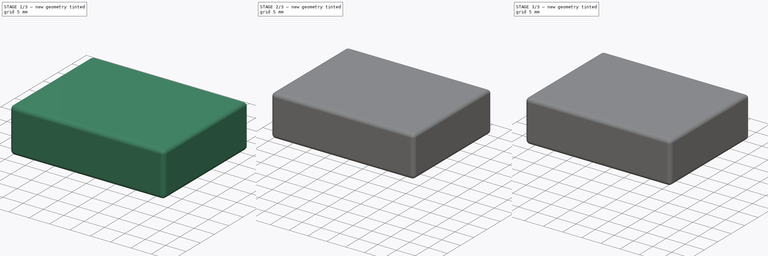
[diagram: build sequence overview — one tinted view per stage of 3, left to right]
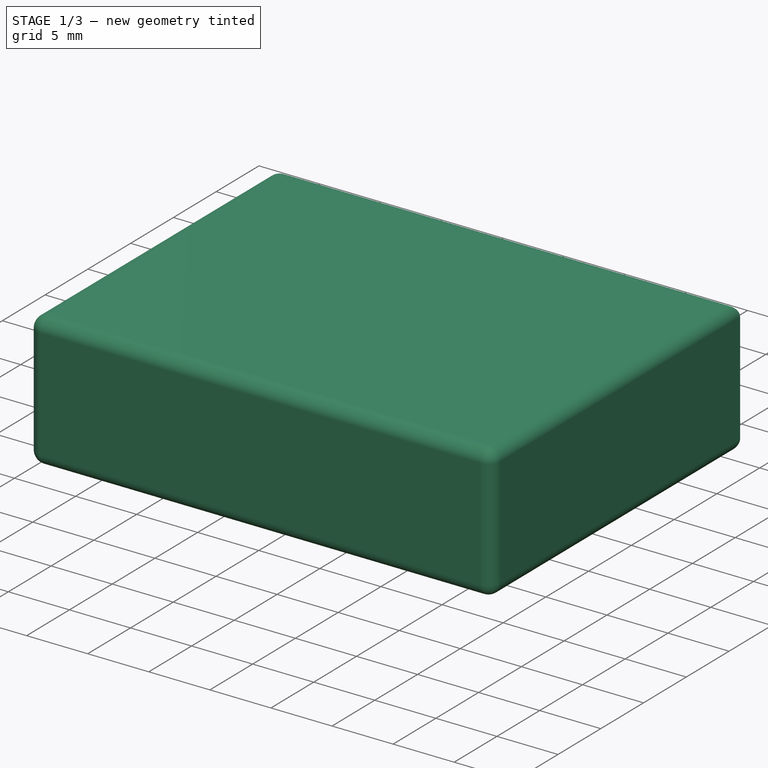
[diagram: stage 1 of 3 — iso view after this stage's code; geometry added in this stage tinted green]
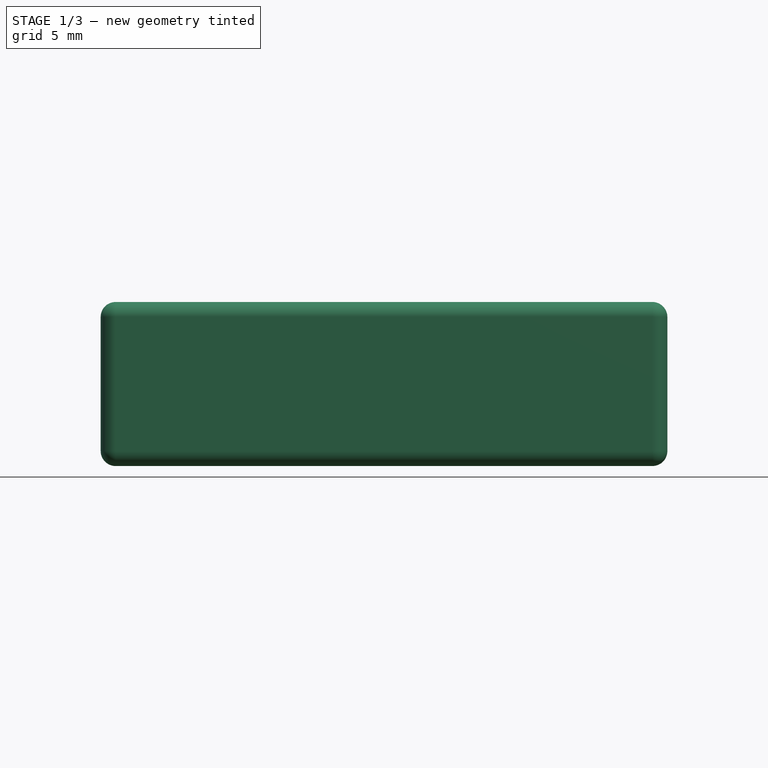
[diagram: stage 1 of 3 — front view after this stage's code; geometry added in this stage tinted green]
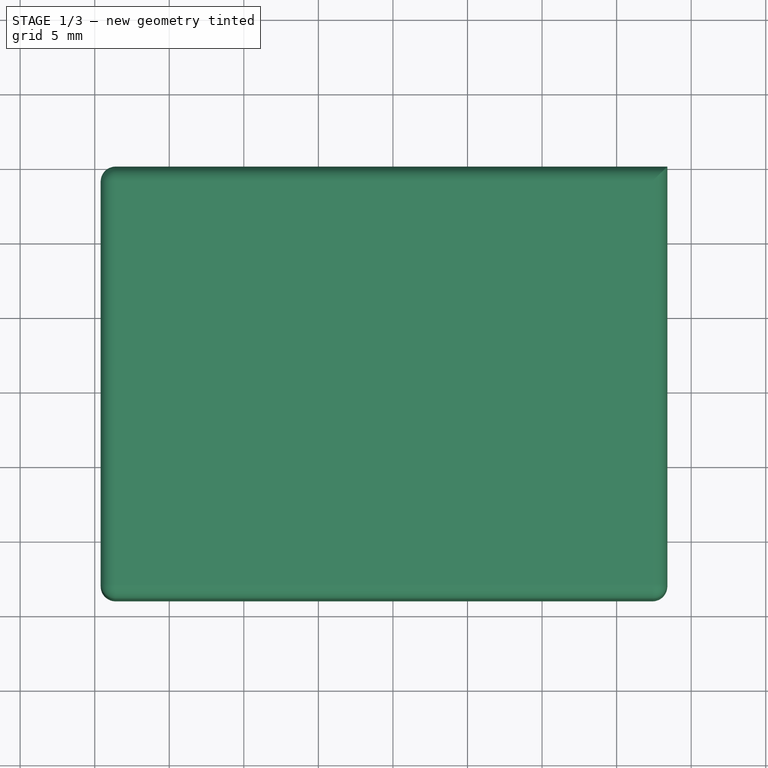
[diagram: stage 1 of 3 — top view after this stage's code; geometry added in this stage tinted green]
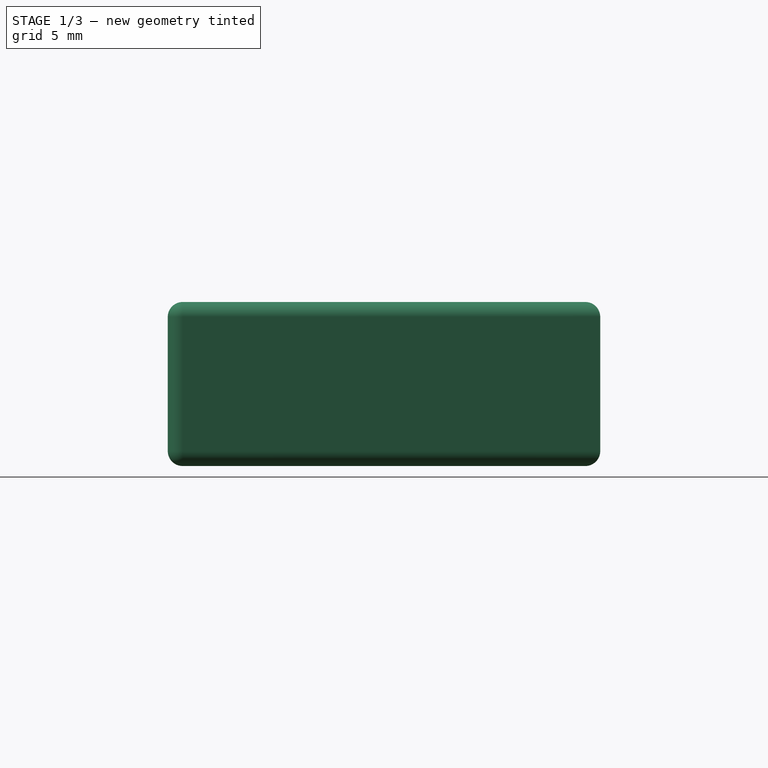
[diagram: stage 1 of 3 — right view after this stage's code; geometry added in this stage tinted green]
FCSTD DOCUMENT  (FreeCAD 0.18R16110 (Git))
Label: Belton BTDR-2H
License: All rights reserved
LicenseURL: http://en.wikipedia.org/wiki/All_rights_reserved
objects: Sketcher::SketchObject×2, PartDesign::AdditivePipe×1, PartDesign::Body×1, Part::FeaturePython×1, Part::MultiFuse×1, Part::Box×1, Part::Fillet×1
note: 9 computed .brp shape members not serialized (recipe doc carries the construction recipe); baked Part::Feature solids carry a one-line shape summary decoded from their .brp

FEATURE [Part::Box] Box  label="Cube"
  AttacherType = Attacher::AttachEngine3D
  Height = 11
  Length = 38
  Placement = pos=(13.4,0,0) rot=(0,0,1;3.14159rad)
  Width = 29
FEATURE [Part::Fillet] Fillet
  Base = -> Box
  Edges = 11 edges r=1: [Edge2,Edge3,Edge4,Edge5,Edge6,Edge7,Edge8,Edge9,Edge10,Edge11,Edge12]
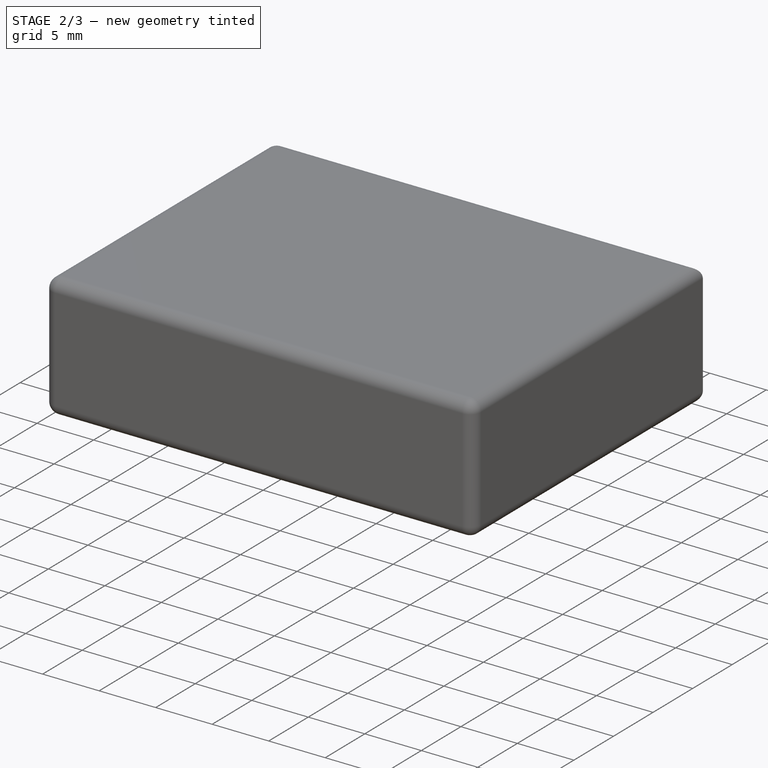
[diagram: stage 2 of 3 — iso view after this stage's code; geometry added in this stage tinted green]
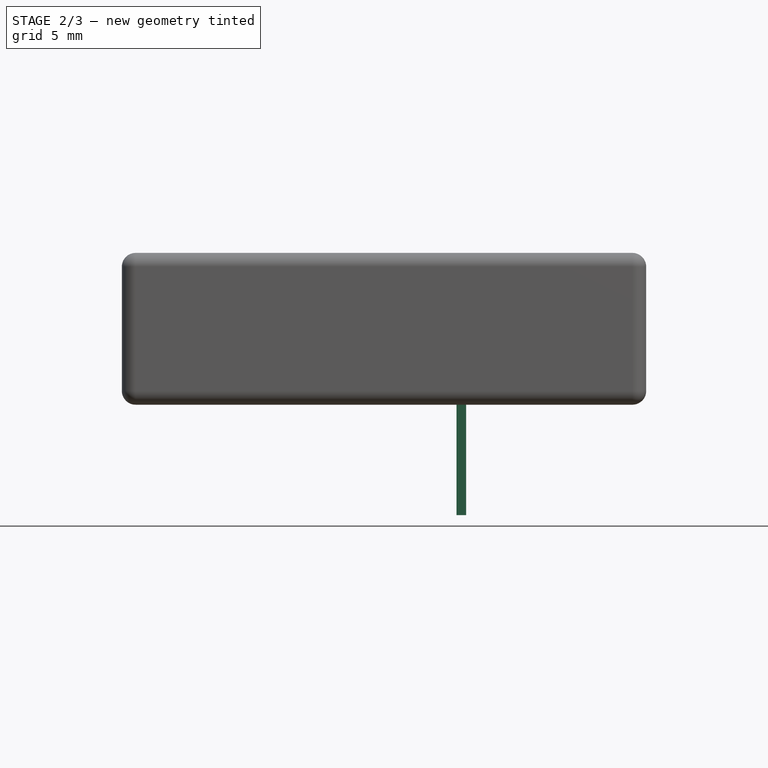
[diagram: stage 2 of 3 — front view after this stage's code; geometry added in this stage tinted green]
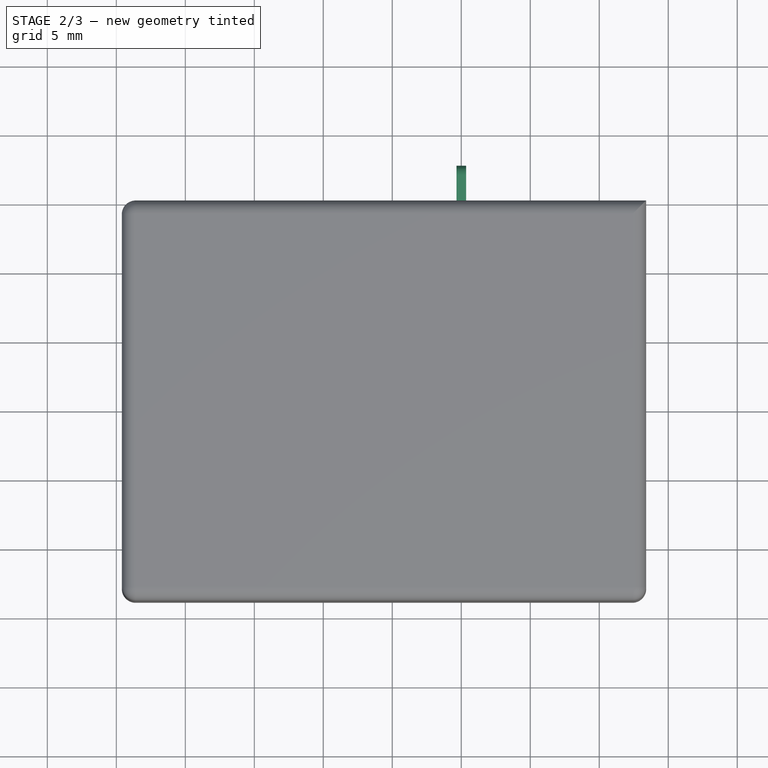
[diagram: stage 2 of 3 — top view after this stage's code; geometry added in this stage tinted green]
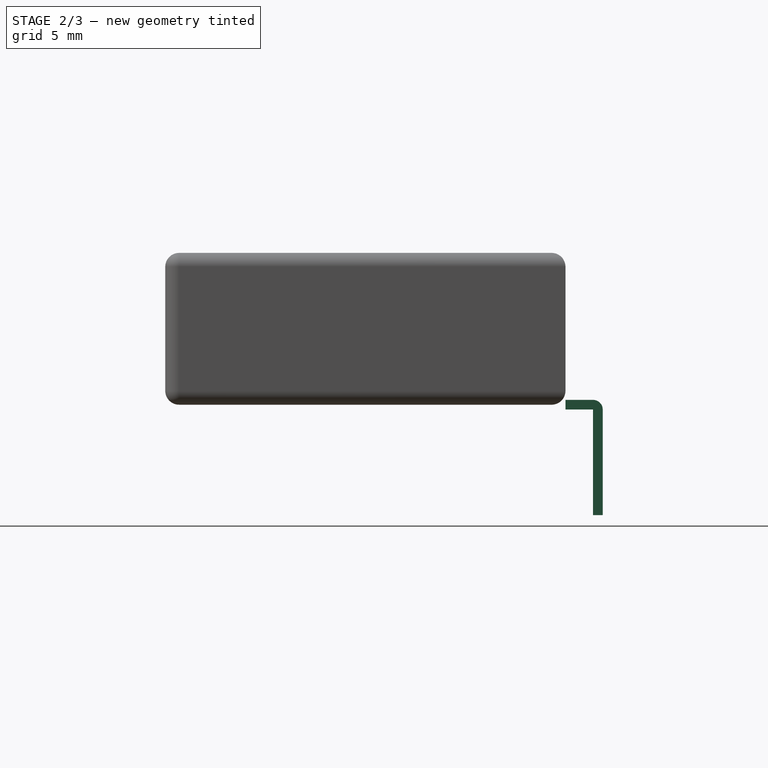
[diagram: stage 2 of 3 — right view after this stage's code; geometry added in this stage tinted green]
FEATURE [Sketcher::SketchObject] Sketch
  MapMode = 5
  Placement = pos=(0,0,0) rot=(0.57735,0.57735,0.57735;2.0944rad)
  Support = -> [YZ_Plane]
  sketch-geometry (3):
    g0: LineSegment StartX=0 StartY=0 StartZ=0 EndX=2 EndY=0 EndZ=0
    g1: ArcOfCircle CenterX=2 CenterY=-0.35 CenterZ=0 NormalX=0 NormalY=0 NormalZ=1 AngleXU=0 Radius=0.35 StartAngle=-1.084e-13 EndAngle=1.5708
    g2: LineSegment StartX=2.35 StartY=-0.35 StartZ=0 EndX=2.35 EndY=-8 EndZ=0
  constraints (8):
    c: Horizontal(g0)
    c: Coincident(g0,g-1)
    c: Tangent(g0,g1) = 1.5708
    c: Vertical(g2)
    c: Tangent(g2,g1) = 1.5708
    c: DistanceY(g2,g0) = 8
    c: DistanceX(g0,g0) = 2
    c: DistanceX(g0,g2) = 2.35
FEATURE [Sketcher::SketchObject] Sketch001
  MapMode = 5
  Placement = pos=(0,0,0) rot=(1,0,0;1.5708rad)
  Support = -> [XZ_Plane]
  sketch-geometry (4):
    g0: LineSegment StartX=-0.35 StartY=0.35 StartZ=0 EndX=0.35 EndY=0.35 EndZ=0
    g1: LineSegment StartX=0.35 StartY=0.35 StartZ=0 EndX=0.35 EndY=-0.35 EndZ=0
    g2: LineSegment StartX=0.35 StartY=-0.35 StartZ=0 EndX=-0.35 EndY=-0.35 EndZ=0
    g3: LineSegment StartX=-0.35 StartY=-0.35 StartZ=0 EndX=-0.35 EndY=0.35 EndZ=0
  constraints (11):
    c: Coincident(g0,g1)
    c: Coincident(g1,g2)
    c: Coincident(g2,g3)
    c: Coincident(g3,g0)
    c: Horizontal(g0)
    c: Horizontal(g2)
    c: Vertical(g1)
    c: Vertical(g3)
    c: Equal(g0,g3)
    c: DistanceX(g0,g0) = 0.7
    c: Symmetric(g0,g2,g-1)
FEATURE [PartDesign::AdditivePipe] AdditivePipe
  AuxilleryCurvelinear = true
  AuxillerySpineTangent = false
  Binormal = (0,0,0)
  Mode = 2
  Placement = pos=(0,0,0) rot=(1,0,0;1.5708rad)
  Profile = -> Sketch001
  Spine = -> Sketch
  SpineTangent = false
  Transformation = 0
  Transition = 0
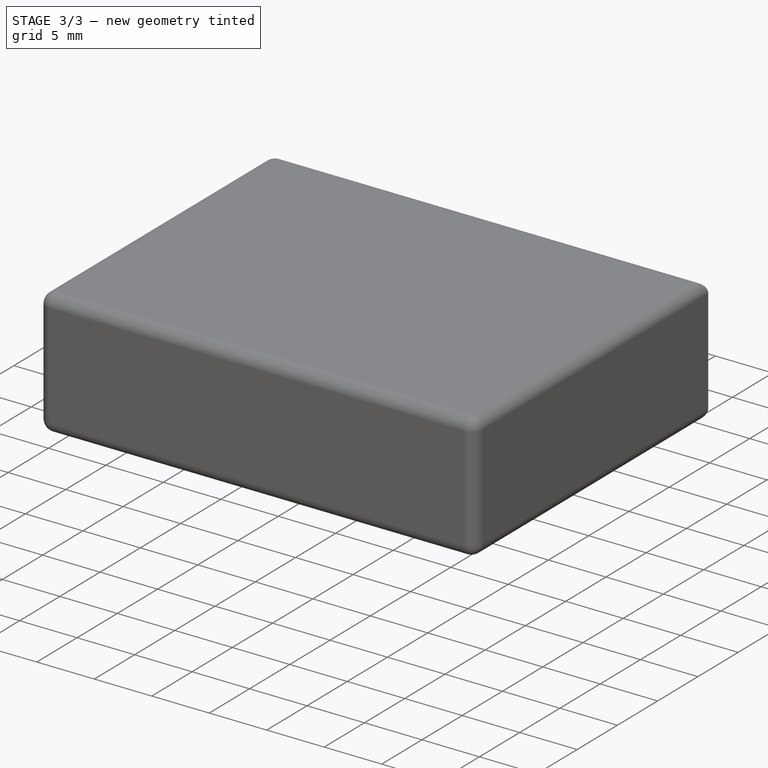
[diagram: stage 3 of 3 — iso view after this stage's code; geometry added in this stage tinted green]
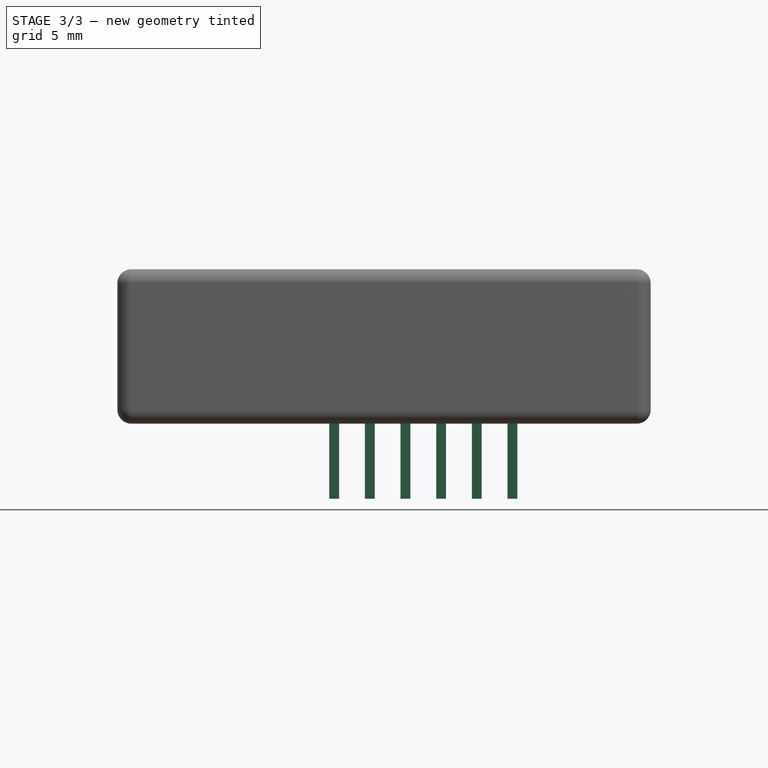
[diagram: stage 3 of 3 — front view after this stage's code; geometry added in this stage tinted green]
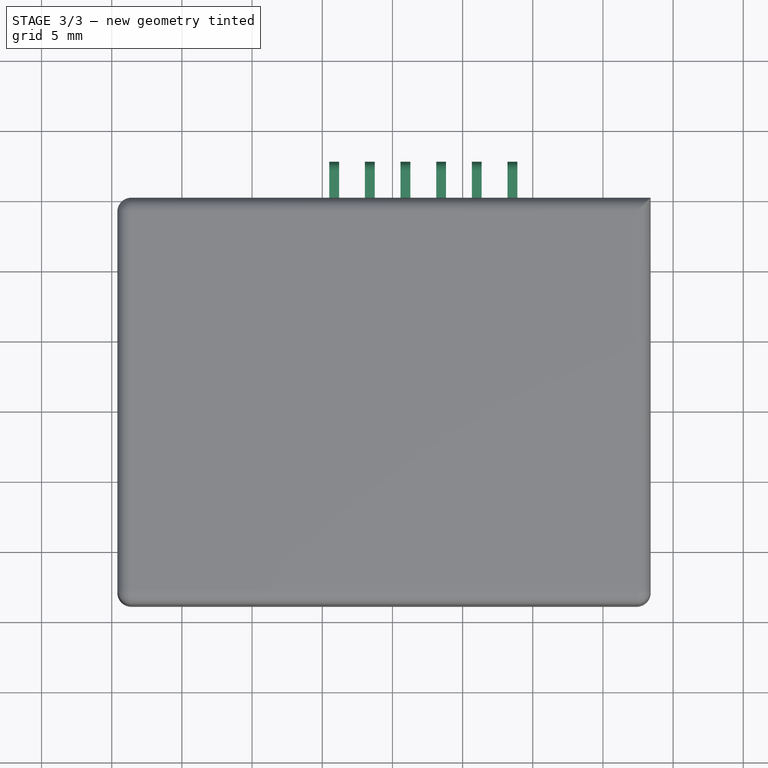
[diagram: stage 3 of 3 — top view after this stage's code; geometry added in this stage tinted green]
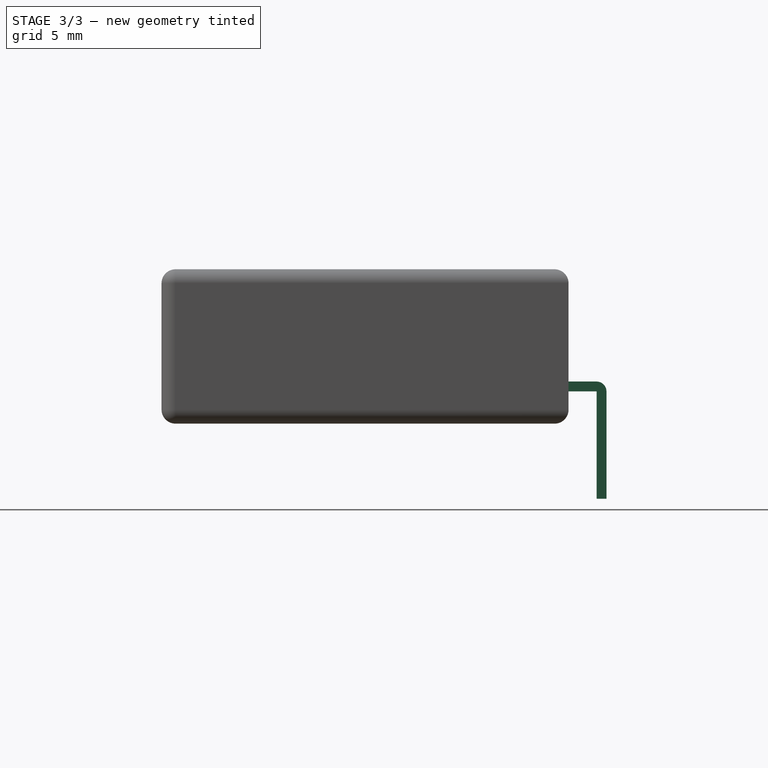
[diagram: stage 3 of 3 — right view after this stage's code; geometry added in this stage tinted green]
FEATURE [PartDesign::Body] Body
  Group = -> [Sketch,Sketch001,AdditivePipe]
  Origin = -> Origin
  Tip = -> AdditivePipe
FEATURE [Part::FeaturePython] Array  # Draft array (typed FeaturePython)
  Angle = 360
  ArrayType = 0
  Axis = (0,0,1)
  Base = -> AdditivePipe
  Center = (0,0,0)
  Fuse = false
  IntervalAxis = (0,0,0)
  IntervalX = (2.54,0,0)
  IntervalY = (0,1,0)
  IntervalZ = (0,0,1)
  NumberPolar = 1
  NumberX = 6
  NumberY = 1
  NumberZ = 1
FEATURE [Part::MultiFuse] Fusion
  Placement = pos=(-9.15,0,2.65) rot=(0,0,1;0rad)
  Shapes = -> [Array]
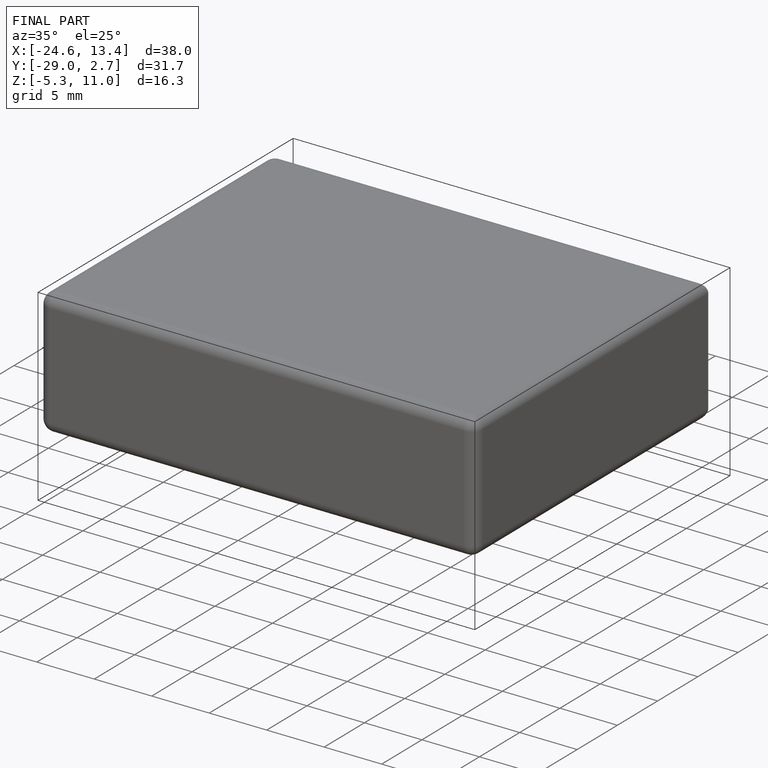
[diagram: finished part — iso view with bounding-box wireframe]
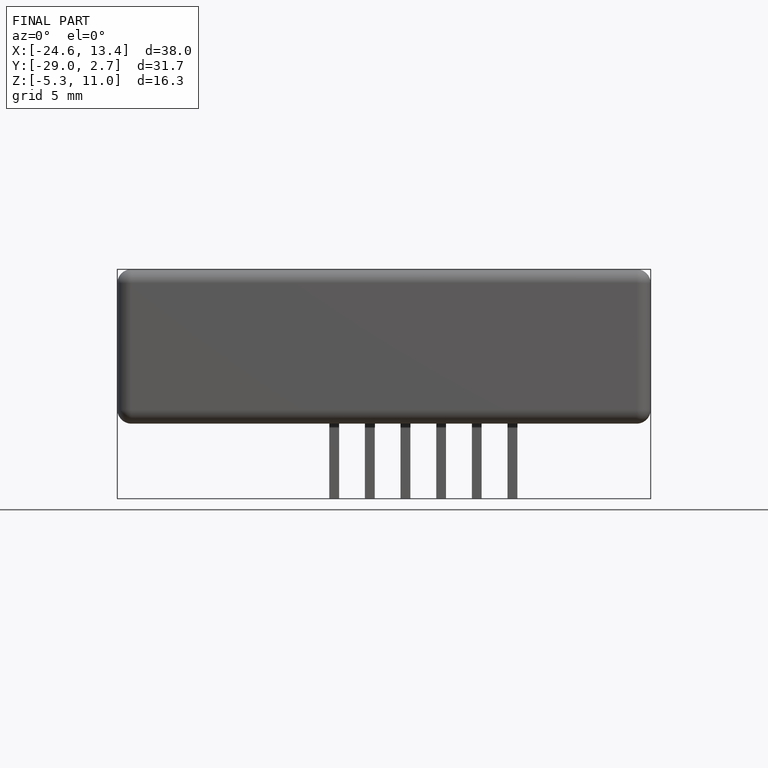
[diagram: finished part — front view with bounding-box wireframe]
